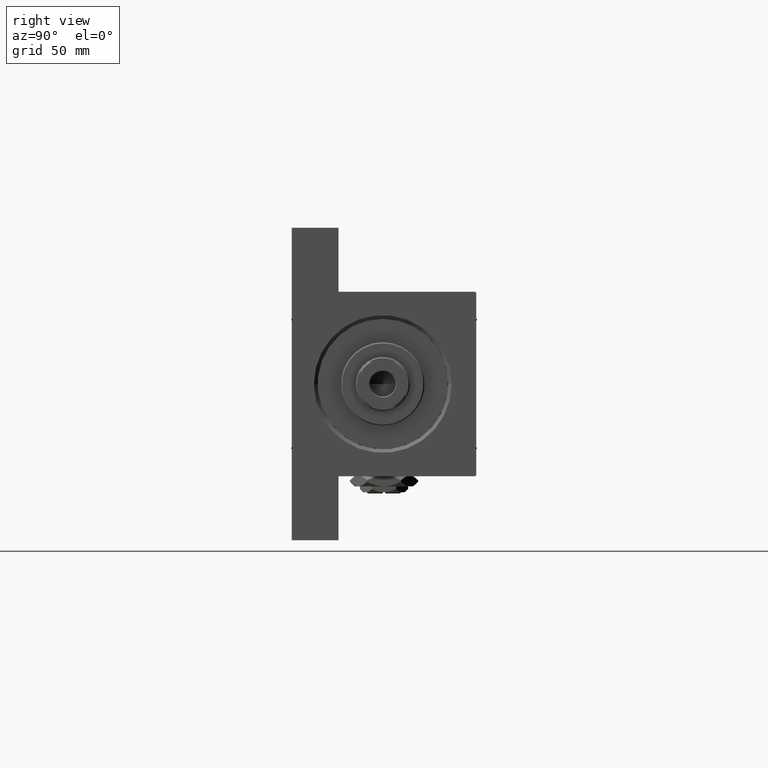
[diagram: clean part render]
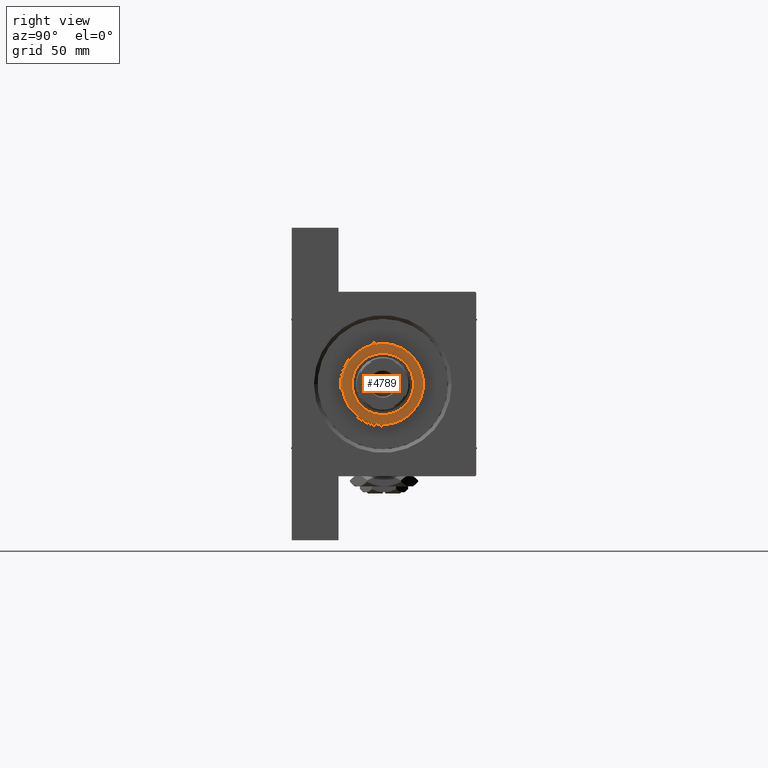
[diagram: same view with one face highlighted and labeled with its STEP entity id]
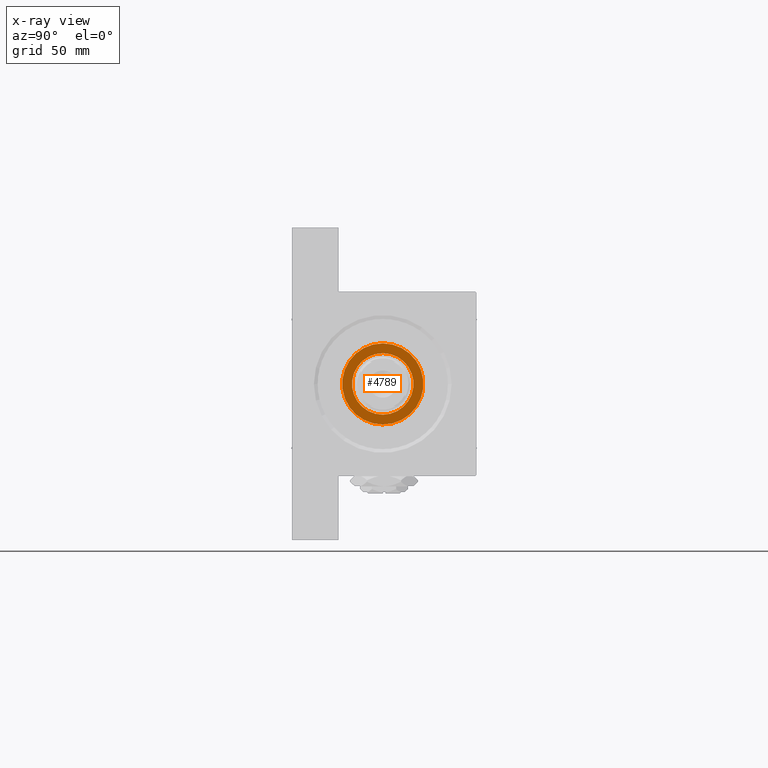
[diagram: x-ray of the same camera — body ghosted, the highlighted face saturated]
A machine part, right view. The second image highlights one B-rep face of the part: STEP entity #4789.
The next image is the same camera in x-ray: the body ghosted, the highlighted face saturated — about 0% of this face is hidden behind the body in this view.
In plain terms, the highlighted planar face has unit normal (1, 0, 0).
Its self-contained STEP definition (entity closure, byte-faithful):
#1242 = VERTEX_POINT ( 'NONE', #16568 ) ;
#2249 = VERTEX_POINT ( 'NONE', #35685 ) ;
#2774 = DIRECTION ( 'NONE',  ( 1.000000000000000000, 0.000000000000000000, 0.000000000000000000 ) ) ;
#4096 = EDGE_CURVE ( 'NONE', #17052, #1242, #37791, .T. ) ;
#4789 = ADVANCED_FACE ( 'NONE', ( #32413, #25185 ), #9753, .T. ) ;
#6722 = CARTESIAN_POINT ( 'NONE',  ( 0.000000000000000000, 0.000000000000000000, 37.69999999999999574 ) ) ;
#8694 = EDGE_CURVE ( 'NONE', #11016, #2249, #21165, .T. ) ;
#9753 = PLANE ( 'NONE',  #17151 ) ;
#9924 = DIRECTION ( 'NONE',  ( 0.000000000000000000, 0.000000000000000000, 1.000000000000000000 ) ) ;
#10575 = ORIENTED_EDGE ( 'NONE', *, *, #23956, .T. ) ;
#10800 = AXIS2_PLACEMENT_3D ( 'NONE', #18433, #28908, #44102 ) ;
#11016 = VERTEX_POINT ( 'NONE', #45409 ) ;
#16568 = CARTESIAN_POINT ( 'NONE',  ( 16.50000000000000000, 2.051283388571816887E-15, 37.69999999999999574 ) ) ;
#17052 = VERTEX_POINT ( 'NONE', #29958 ) ;
#17151 = AXIS2_PLACEMENT_3D ( 'NONE', #6722, #40382, #47584 ) ;
#18433 = CARTESIAN_POINT ( 'NONE',  ( 0.000000000000000000, 0.000000000000000000, 37.69999999999999574 ) ) ;
#20708 = DIRECTION ( 'NONE',  ( 0.000000000000000000, 0.000000000000000000, 1.000000000000000000 ) ) ;
#21165 = CIRCLE ( 'NONE', #10800, 12.50000000000000000 ) ;
#23956 = EDGE_CURVE ( 'NONE', #1242, #17052, #27850, .T. ) ;
#24921 = CIRCLE ( 'NONE', #26500, 12.50000000000000000 ) ;
#25185 = FACE_OUTER_BOUND ( 'NONE', #29723, .T. ) ;
#26500 = AXIS2_PLACEMENT_3D ( 'NONE', #32679, #33153, #2774 ) ;
#27850 = CIRCLE ( 'NONE', #34212, 16.50000000000000000 ) ;
#28013 = ORIENTED_EDGE ( 'NONE', *, *, #44914, .F. ) ;
#28262 = AXIS2_PLACEMENT_3D ( 'NONE', #40550, #9924, #47519 ) ;
#28908 = DIRECTION ( 'NONE',  ( 0.000000000000000000, 0.000000000000000000, 1.000000000000000000 ) ) ;
#29723 = EDGE_LOOP ( 'NONE', ( #48355, #10575 ) ) ;
#29958 = CARTESIAN_POINT ( 'NONE',  ( -16.50000000000000000, 0.000000000000000000, 37.69999999999999574 ) ) ;
#32413 = FACE_BOUND ( 'NONE', #38694, .T. ) ;
#32679 = CARTESIAN_POINT ( 'NONE',  ( 0.000000000000000000, 0.000000000000000000, 37.69999999999999574 ) ) ;
#33153 = DIRECTION ( 'NONE',  ( 0.000000000000000000, 0.000000000000000000, 1.000000000000000000 ) ) ;
#34212 = AXIS2_PLACEMENT_3D ( 'NONE', #43114, #20708, #36138 ) ;
#35685 = CARTESIAN_POINT ( 'NONE',  ( 12.50000000000000000, 0.000000000000000000, 37.69999999999999574 ) ) ;
#36138 = DIRECTION ( 'NONE',  ( 1.000000000000000000, 0.000000000000000000, 0.000000000000000000 ) ) ;
#37791 = CIRCLE ( 'NONE', #28262, 16.50000000000000000 ) ;
#38694 = EDGE_LOOP ( 'NONE', ( #28013, #48700 ) ) ;
#40382 = DIRECTION ( 'NONE',  ( 0.000000000000000000, 0.000000000000000000, 1.000000000000000000 ) ) ;
#40550 = CARTESIAN_POINT ( 'NONE',  ( 0.000000000000000000, 0.000000000000000000, 37.69999999999999574 ) ) ;
#43114 = CARTESIAN_POINT ( 'NONE',  ( 0.000000000000000000, 0.000000000000000000, 37.69999999999999574 ) ) ;
#44102 = DIRECTION ( 'NONE',  ( 1.000000000000000000, 0.000000000000000000, 0.000000000000000000 ) ) ;
#44914 = EDGE_CURVE ( 'NONE', #2249, #11016, #24921, .T. ) ;
#45409 = CARTESIAN_POINT ( 'NONE',  ( -12.50000000000000000, 1.530808498934191521E-15, 37.69999999999999574 ) ) ;
#47519 = DIRECTION ( 'NONE',  ( 1.000000000000000000, 0.000000000000000000, 0.000000000000000000 ) ) ;
#47584 = DIRECTION ( 'NONE',  ( 1.000000000000000000, 0.000000000000000000, -0.000000000000000000 ) ) ;
#48355 = ORIENTED_EDGE ( 'NONE', *, *, #4096, .T. ) ;
#48700 = ORIENTED_EDGE ( 'NONE', *, *, #8694, .F. ) ;